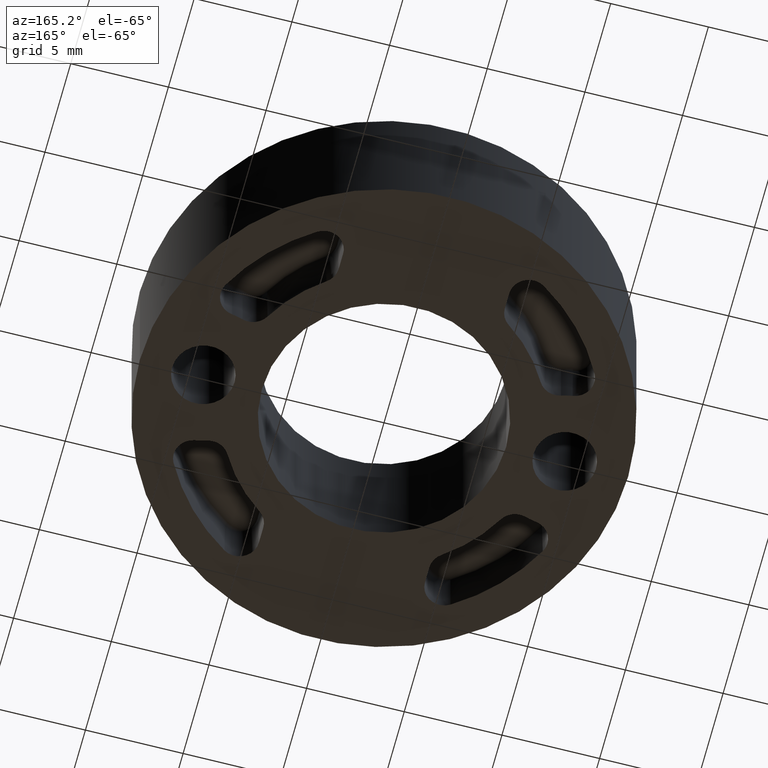
[diagram: clean part render]
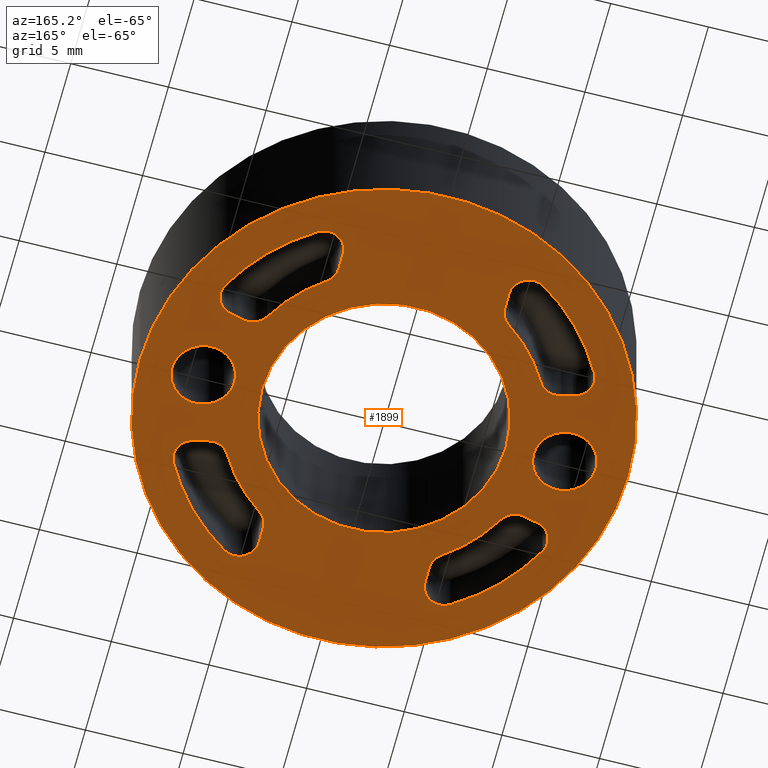
[diagram: same view with one face highlighted and labeled with its STEP entity id]
A machine part, auxiliary view. The second image highlights one B-rep face of the part: STEP entity #1899.
In plain terms, the highlighted planar face has unit normal (0, 0, 1).
Its self-contained STEP definition (entity closure, byte-faithful):
#30 = CARTESIAN_POINT ( 'NONE',  ( 10.85000000000000100, -8.673617379883502000E-016, 7.594265326949536800E-029 ) ) ;
#31 = CARTESIAN_POINT ( 'NONE',  ( 7.649999999999996800, -6.714247213767846500E-016, -7.594265326949537900E-029 ) ) ;
#32 = DIRECTION ( 'NONE',  ( -1.000000000000000000, -4.694454239443882500E-030, 4.746415829343455600E-029 ) ) ;
#33 = DIRECTION ( 'NONE',  ( -4.746415829343455000E-029, 1.143848312570467100E-029, 1.000000000000000000 ) ) ;
#34 = CARTESIAN_POINT ( 'NONE',  ( 9.250000000000000000, -8.673617379884035500E-016, 0.0000000000000000000 ) ) ;
#35 = AXIS2_PLACEMENT_3D ( 'NONE', #34, #33, #32 ) ;
#36 = CIRCLE ( 'NONE', #35, 1.600000000000001600 ) ;
#43 = CARTESIAN_POINT ( 'NONE',  ( -7.649999999999997700, -8.673617379883959500E-016, -7.594265326949536800E-029 ) ) ;
#44 = CARTESIAN_POINT ( 'NONE',  ( -10.85000000000000100, -6.714247213767848500E-016, -7.594265326949536800E-029 ) ) ;
#45 = DIRECTION ( 'NONE',  ( 1.000000000000000000, 4.754639550205983600E-030, -4.746415829343455600E-029 ) ) ;
#46 = DIRECTION ( 'NONE',  ( -4.746415829343455000E-029, 1.143848312570467100E-029, 1.000000000000000000 ) ) ;
#47 = CARTESIAN_POINT ( 'NONE',  ( -9.250000000000000000, -8.673617379884035500E-016, 0.0000000000000000000 ) ) ;
#48 = AXIS2_PLACEMENT_3D ( 'NONE', #47, #46, #45 ) ;
#49 = CIRCLE ( 'NONE', #48, 1.600000000000001600 ) ;
#171 = DIRECTION ( 'NONE',  ( 1.000000000000000000, 0.0000000000000000000, -4.746415829343452800E-029 ) ) ;
#172 = DIRECTION ( 'NONE',  ( -4.746415829343455000E-029, 1.143848312570467100E-029, 1.000000000000000000 ) ) ;
#173 = CARTESIAN_POINT ( 'NONE',  ( 5.250000000000001800, 7.310095758606728100, 0.0000000000000000000 ) ) ;
#174 = AXIS2_PLACEMENT_3D ( 'NONE', #173, #172, #171 ) ;
#175 = CIRCLE ( 'NONE', #174, 1.000000000000000000 ) ;
#176 = CARTESIAN_POINT ( 'NONE',  ( 4.250000000000001800, 7.310095758606728100, 0.0000000000000000000 ) ) ;
#183 = CIRCLE ( 'NONE', #237, 1.000000000000000000 ) ;
#184 = DIRECTION ( 'NONE',  ( 1.000000000000000000, 3.552713678800505700E-015, -4.746415829343459500E-029 ) ) ;
#185 = DIRECTION ( 'NONE',  ( 4.746415829343455000E-029, -1.143848312570467100E-029, -1.000000000000000000 ) ) ;
#186 = CARTESIAN_POINT ( 'NONE',  ( -9.250000000000000000, -8.673617379884035500E-016, 0.0000000000000000000 ) ) ;
#187 = AXIS2_PLACEMENT_3D ( 'NONE', #186, #185, #184 ) ;
#188 = CIRCLE ( 'NONE', #187, 3.600000000000000100 ) ;
#189 = DIRECTION ( 'NONE',  ( 1.000000000000000000, 0.0000000000000000000, -4.746415829343455000E-029 ) ) ;
#190 = DIRECTION ( 'NONE',  ( -4.746415829343455000E-029, 1.143848312570467100E-029, 1.000000000000000000 ) ) ;
#191 = CARTESIAN_POINT ( 'NONE',  ( -7.859594594594603300, -4.384834410627085800, 0.0000000000000000000 ) ) ;
#192 = AXIS2_PLACEMENT_3D ( 'NONE', #191, #190, #189 ) ;
#193 = CIRCLE ( 'NONE', #192, 1.000000000000001800 ) ;
#208 = CARTESIAN_POINT ( 'NONE',  ( -12.50000000000000000, 6.591949208711856900E-014, -5.933019786679327700E-028 ) ) ;
#209 = DIRECTION ( 'NONE',  ( 1.000000000000000000, 4.731287430827687700E-030, -4.746415829343455600E-029 ) ) ;
#210 = DIRECTION ( 'NONE',  ( -4.746415829343455000E-029, 1.143848312570467100E-029, 1.000000000000000000 ) ) ;
#211 = CARTESIAN_POINT ( 'NONE',  ( 0.0000000000000000000, 0.0000000000000000000, 0.0000000000000000000 ) ) ;
#212 = AXIS2_PLACEMENT_3D ( 'NONE', #211, #210, #209 ) ;
#213 = CIRCLE ( 'NONE', #212, 12.50000000000000000 ) ;
#215 = CARTESIAN_POINT ( 'NONE',  ( -4.666666666666665200, 6.497862896539315300, 0.0000000000000000000 ) ) ;
#216 = DIRECTION ( 'NONE',  ( 1.000000000000000000, 4.731287430827687700E-030, -4.746415829343455000E-029 ) ) ;
#217 = DIRECTION ( 'NONE',  ( 4.746415829343455000E-029, -1.143848312570467100E-029, -1.000000000000000000 ) ) ;
#218 = CARTESIAN_POINT ( 'NONE',  ( 0.0000000000000000000, 0.0000000000000000000, 0.0000000000000000000 ) ) ;
#219 = AXIS2_PLACEMENT_3D ( 'NONE', #218, #217, #216 ) ;
#220 = CIRCLE ( 'NONE', #219, 8.000000000000001800 ) ;
#221 = CARTESIAN_POINT ( 'NONE',  ( -6.986306306306307300, 3.897630587224114200, 0.0000000000000000000 ) ) ;
#222 = DIRECTION ( 'NONE',  ( 1.000000000000000000, 0.0000000000000000000, -4.746415829343452800E-029 ) ) ;
#223 = DIRECTION ( 'NONE',  ( -4.746415829343455000E-029, 1.143848312570467100E-029, 1.000000000000000000 ) ) ;
#224 = CARTESIAN_POINT ( 'NONE',  ( -7.859594594594595300, 4.384834410627095600, 0.0000000000000000000 ) ) ;
#225 = AXIS2_PLACEMENT_3D ( 'NONE', #224, #223, #222 ) ;
#226 = CIRCLE ( 'NONE', #225, 1.000000000000000900 ) ;
#227 = CARTESIAN_POINT ( 'NONE',  ( -8.161856639247941900, 3.431609538751669000, -1.301042606982605300E-013 ) ) ;
#228 = DIRECTION ( 'NONE',  ( 1.000000000000000000, 4.734577779951954600E-030, -4.746415829343455000E-029 ) ) ;
#229 = DIRECTION ( 'NONE',  ( 4.746415829343455000E-029, -1.143848312570467100E-029, -1.000000000000000000 ) ) ;
#230 = CARTESIAN_POINT ( 'NONE',  ( -9.250000000000000000, -8.673617379884035500E-016, 0.0000000000000000000 ) ) ;
#231 = AXIS2_PLACEMENT_3D ( 'NONE', #230, #229, #228 ) ;
#232 = CIRCLE ( 'NONE', #231, 3.600000000000000100 ) ;
#233 = CARTESIAN_POINT ( 'NONE',  ( -8.715605170387776800, 3.560115470891914500, -1.301042606982605300E-013 ) ) ;
#234 = DIRECTION ( 'NONE',  ( 1.000000000000000000, 0.0000000000000000000, -4.746415829343455000E-029 ) ) ;
#235 = DIRECTION ( 'NONE',  ( -4.746415829343455000E-029, 1.143848312570467100E-029, 1.000000000000000000 ) ) ;
#236 = CARTESIAN_POINT ( 'NONE',  ( -8.567162162162162500, 4.549036435028519100, 0.0000000000000000000 ) ) ;
#237 = AXIS2_PLACEMENT_3D ( 'NONE', #236, #235, #234 ) ;
#238 = CIRCLE ( 'NONE', #299, 0.9999999999999974500 ) ;
#239 = DIRECTION ( 'NONE',  ( 1.000000000000000000, 4.731287430827687700E-030, -4.746415829343455000E-029 ) ) ;
#240 = DIRECTION ( 'NONE',  ( 4.746415829343455000E-029, 1.143848312570467100E-029, 1.000000000000000000 ) ) ;
#241 = CARTESIAN_POINT ( 'NONE',  ( 0.0000000000000000000, 0.0000000000000000000, 0.0000000000000000000 ) ) ;
#242 = AXIS2_PLACEMENT_3D ( 'NONE', #241, #240, #239 ) ;
#243 = CARTESIAN_POINT ( 'NONE',  ( -5.249999999999998200, 8.156439174051380200, 0.0000000000000000000 ) ) ;
#244 = PLANE ( 'NONE',  #242 ) ;
#260 = FACE_BOUND ( 'NONE', #1670, .T. ) ;
#261 = FACE_BOUND ( 'NONE', #1700, .T. ) ;
#262 = FACE_BOUND ( 'NONE', #1696, .T. ) ;
#263 = FACE_OUTER_BOUND ( 'NONE', #1689, .T. ) ;
#264 = FACE_BOUND ( 'NONE', #1685, .T. ) ;
#265 = FACE_BOUND ( 'NONE', #1681, .T. ) ;
#266 = FACE_BOUND ( 'NONE', #1920, .T. ) ;
#267 = FACE_BOUND ( 'NONE', #1900, .T. ) ;
#268 = DIRECTION ( 'NONE',  ( 1.000000000000000000, 0.0000000000000000000, -4.746415829343452800E-029 ) ) ;
#269 = DIRECTION ( 'NONE',  ( -4.746415829343455000E-029, 1.143848312570467100E-029, 1.000000000000000000 ) ) ;
#270 = CARTESIAN_POINT ( 'NONE',  ( -5.249999999999996400, 7.310095758606726300, 0.0000000000000000000 ) ) ;
#271 = AXIS2_PLACEMENT_3D ( 'NONE', #270, #269, #268 ) ;
#272 = CIRCLE ( 'NONE', #271, 1.000000000000000000 ) ;
#273 = CARTESIAN_POINT ( 'NONE',  ( -4.249999999999996400, 7.310095758606726300, 0.0000000000000000000 ) ) ;
#284 = CARTESIAN_POINT ( 'NONE',  ( -8.161856639247943700, -3.431609538751626300, 1.387778780781445700E-014 ) ) ;
#285 = CARTESIAN_POINT ( 'NONE',  ( 6.250000000000000000, 6.668487105825763000E-014, 2.966509893339651800E-028 ) ) ;
#289 = DIRECTION ( 'NONE',  ( 1.000000000000000000, 4.731287430827688400E-030, -4.746415829343454500E-029 ) ) ;
#290 = DIRECTION ( 'NONE',  ( -4.746415829343455000E-029, 1.143848312570467100E-029, 1.000000000000000000 ) ) ;
#291 = CARTESIAN_POINT ( 'NONE',  ( 0.0000000000000000000, 0.0000000000000000000, 0.0000000000000000000 ) ) ;
#292 = AXIS2_PLACEMENT_3D ( 'NONE', #291, #290, #289 ) ;
#293 = CIRCLE ( 'NONE', #292, 10.69999999999999800 ) ;
#295 = CARTESIAN_POINT ( 'NONE',  ( -5.791237113402054600, 8.997309191994823200, 0.0000000000000000000 ) ) ;
#296 = CARTESIAN_POINT ( 'NONE',  ( -4.249999999999997300, 8.156439174051380200, -1.387778780781445700E-014 ) ) ;
#297 = DIRECTION ( 'NONE',  ( 1.000000000000000000, 0.0000000000000000000, -4.746415829343455000E-029 ) ) ;
#298 = DIRECTION ( 'NONE',  ( -4.746415829343455000E-029, 1.143848312570467100E-029, 1.000000000000000000 ) ) ;
#299 = AXIS2_PLACEMENT_3D ( 'NONE', #243, #298, #297 ) ;
#321 = CARTESIAN_POINT ( 'NONE',  ( 8.161856639247943700, 3.431609538751671200, -1.439820485060749900E-013 ) ) ;
#322 = CARTESIAN_POINT ( 'NONE',  ( 6.986306306306308200, 3.897630587224115900, 1.387778780781445700E-014 ) ) ;
#323 = CARTESIAN_POINT ( 'NONE',  ( 4.666666666666674100, 6.497862896539309900, 0.0000000000000000000 ) ) ;
#324 = DIRECTION ( 'NONE',  ( 1.000000000000000000, -8.881784197001247600E-015, -4.746415829343444900E-029 ) ) ;
#325 = DIRECTION ( 'NONE',  ( 4.746415829343455000E-029, -1.143848312570467100E-029, -1.000000000000000000 ) ) ;
#326 = CARTESIAN_POINT ( 'NONE',  ( 0.0000000000000000000, 0.0000000000000000000, 0.0000000000000000000 ) ) ;
#327 = AXIS2_PLACEMENT_3D ( 'NONE', #326, #325, #324 ) ;
#328 = CIRCLE ( 'NONE', #327, 8.000000000000000000 ) ;
#329 = DIRECTION ( 'NONE',  ( 1.024834271951776500E-015, 1.000000000000000000, 1.138917931912835800E-029 ) ) ;
#330 = VECTOR ( 'NONE', #329, 1000.000000000000000 ) ;
#331 = CARTESIAN_POINT ( 'NONE',  ( -4.250000000000004400, 4.336808689942017700E-015, 0.0000000000000000000 ) ) ;
#332 = LINE ( 'NONE', #331, #330 ) ;
#1184 = VERTEX_POINT ( 'NONE', #9330 ) ;
#1638 = ORIENTED_EDGE ( 'NONE', *, *, #1639, .T. ) ;
#1639 = EDGE_CURVE ( 'NONE', #1184, #1673, #9363, .T. ) ;
#1645 = ORIENTED_EDGE ( 'NONE', *, *, #1646, .T. ) ;
#1646 = EDGE_CURVE ( 'NONE', #1648, #1647, #9398, .T. ) ;
#1647 = VERTEX_POINT ( 'NONE', #9366 ) ;
#1648 = VERTEX_POINT ( 'NONE', #9365 ) ;
#1649 = EDGE_CURVE ( 'NONE', #1775, #1648, #9368, .T. ) ;
#1650 = ORIENTED_EDGE ( 'NONE', *, *, #1651, .T. ) ;
#1651 = EDGE_CURVE ( 'NONE', #1680, #1652, #9360, .T. ) ;
#1652 = VERTEX_POINT ( 'NONE', #9369 ) ;
#1653 = ORIENTED_EDGE ( 'NONE', *, *, #1654, .T. ) ;
#1654 = EDGE_CURVE ( 'NONE', #1652, #1655, #9371, .T. ) ;
#1655 = VERTEX_POINT ( 'NONE', #9372 ) ;
#1656 = ORIENTED_EDGE ( 'NONE', *, *, #1657, .T. ) ;
#1657 = EDGE_CURVE ( 'NONE', #1655, #1658, #9353, .T. ) ;
#1658 = VERTEX_POINT ( 'NONE', #9399 ) ;
#1659 = ORIENTED_EDGE ( 'NONE', *, *, #1660, .T. ) ;
#1660 = EDGE_CURVE ( 'NONE', #1658, #1184, #9443, .T. ) ;
#1662 = ORIENTED_EDGE ( 'NONE', *, *, #1663, .T. ) ;
#1663 = EDGE_CURVE ( 'NONE', #1647, #1664, #9445, .T. ) ;
#1664 = VERTEX_POINT ( 'NONE', #9400 ) ;
#1665 = ORIENTED_EDGE ( 'NONE', *, *, #1666, .T. ) ;
#1666 = EDGE_CURVE ( 'NONE', #1664, #1667, #9408, .T. ) ;
#1667 = VERTEX_POINT ( 'NONE', #9404 ) ;
#1668 = ORIENTED_EDGE ( 'NONE', *, *, #1669, .T. ) ;
#1669 = EDGE_CURVE ( 'NONE', #1667, #1703, #9434, .T. ) ;
#1670 = EDGE_LOOP ( 'NONE', ( #1671, #1675, #1678, #1650, #1653, #1656, #1659, #1638 ) ) ;
#1671 = ORIENTED_EDGE ( 'NONE', *, *, #1672, .T. ) ;
#1672 = EDGE_CURVE ( 'NONE', #1673, #1674, #9425, .T. ) ;
#1673 = VERTEX_POINT ( 'NONE', #9431 ) ;
#1674 = VERTEX_POINT ( 'NONE', #9430 ) ;
#1675 = ORIENTED_EDGE ( 'NONE', *, *, #1676, .T. ) ;
#1676 = EDGE_CURVE ( 'NONE', #1674, #1677, #9414, .T. ) ;
#1677 = VERTEX_POINT ( 'NONE', #9409 ) ;
#1678 = ORIENTED_EDGE ( 'NONE', *, *, #1679, .T. ) ;
#1679 = EDGE_CURVE ( 'NONE', #1677, #1680, #9422, .T. ) ;
#1680 = VERTEX_POINT ( 'NONE', #9423 ) ;
#1681 = EDGE_LOOP ( 'NONE', ( #1682, #1684 ) ) ;
#1682 = ORIENTED_EDGE ( 'NONE', *, *, #1683, .T. ) ;
#1683 = EDGE_CURVE ( 'NONE', #1818, #1817, #9440, .T. ) ;
#1684 = ORIENTED_EDGE ( 'NONE', *, *, #1816, .T. ) ;
#1685 = EDGE_LOOP ( 'NONE', ( #1686, #1688 ) ) ;
#1686 = ORIENTED_EDGE ( 'NONE', *, *, #1687, .T. ) ;
#1687 = EDGE_CURVE ( 'NONE', #1833, #1832, #9498, .T. ) ;
#1688 = ORIENTED_EDGE ( 'NONE', *, *, #1831, .T. ) ;
#1689 = EDGE_LOOP ( 'NONE', ( #1690, #1692 ) ) ;
#1690 = ORIENTED_EDGE ( 'NONE', *, *, #1691, .F. ) ;
#1691 = EDGE_CURVE ( 'NONE', #1896, #1753, #9473, .T. ) ;
#1692 = ORIENTED_EDGE ( 'NONE', *, *, #1895, .F. ) ;
#1696 = EDGE_LOOP ( 'NONE', ( #1697, #1698 ) ) ;
#1697 = ORIENTED_EDGE ( 'NONE', *, *, #1741, .T. ) ;
#1698 = ORIENTED_EDGE ( 'NONE', *, *, #1699, .T. ) ;
#1699 = EDGE_CURVE ( 'NONE', #1910, #1742, #9456, .T. ) ;
#1700 = EDGE_LOOP ( 'NONE', ( #1701, #1874, #1876, #1878, #1879, #1645, #1662, #1665, #1668 ) ) ;
#1701 = ORIENTED_EDGE ( 'NONE', *, *, #1702, .T. ) ;
#1702 = EDGE_CURVE ( 'NONE', #1703, #1704, #9492, .T. ) ;
#1703 = VERTEX_POINT ( 'NONE', #9486 ) ;
#1704 = VERTEX_POINT ( 'NONE', #9485 ) ;
#1741 = EDGE_CURVE ( 'NONE', #1742, #1910, #9576, .T. ) ;
#1742 = VERTEX_POINT ( 'NONE', #9580 ) ;
#1753 = VERTEX_POINT ( 'NONE', #9573 ) ;
#1754 = EDGE_CURVE ( 'NONE', #1924, #1926, #9592, .T. ) ;
#1755 = ORIENTED_EDGE ( 'NONE', *, *, #1756, .T. ) ;
#1756 = EDGE_CURVE ( 'NONE', #1926, #1757, #9634, .T. ) ;
#1757 = VERTEX_POINT ( 'NONE', #9639 ) ;
#1758 = ORIENTED_EDGE ( 'NONE', *, *, #1759, .T. ) ;
#1759 = EDGE_CURVE ( 'NONE', #1757, #1760, #9643, .T. ) ;
#1760 = VERTEX_POINT ( 'NONE', #9635 ) ;
#1761 = ORIENTED_EDGE ( 'NONE', *, *, #1762, .T. ) ;
#1762 = EDGE_CURVE ( 'NONE', #1760, #1763, #9655, .T. ) ;
#1763 = VERTEX_POINT ( 'NONE', #9656 ) ;
#1764 = ORIENTED_EDGE ( 'NONE', *, *, #1765, .T. ) ;
#1765 = EDGE_CURVE ( 'NONE', #1763, #1766, #9660, .T. ) ;
#1766 = VERTEX_POINT ( 'NONE', #9664 ) ;
#1767 = ORIENTED_EDGE ( 'NONE', *, *, #1768, .T. ) ;
#1768 = EDGE_CURVE ( 'NONE', #1766, #1866, #9650, .T. ) ;
#1775 = VERTEX_POINT ( 'NONE', #9666 ) ;
#1777 = EDGE_CURVE ( 'NONE', #1778, #1775, #9667, .T. ) ;
#1778 = VERTEX_POINT ( 'NONE', #9692 ) ;
#1786 = VERTEX_POINT ( 'NONE', #8822 ) ;
#1788 = EDGE_CURVE ( 'NONE', #1789, #1786, #8859, .T. ) ;
#1789 = VERTEX_POINT ( 'NONE', #8845 ) ;
#1816 = EDGE_CURVE ( 'NONE', #1817, #1818, #36, .T. ) ;
#1817 = VERTEX_POINT ( 'NONE', #31 ) ;
#1818 = VERTEX_POINT ( 'NONE', #30 ) ;
#1831 = EDGE_CURVE ( 'NONE', #1832, #1833, #49, .T. ) ;
#1832 = VERTEX_POINT ( 'NONE', #44 ) ;
#1833 = VERTEX_POINT ( 'NONE', #43 ) ;
#1866 = VERTEX_POINT ( 'NONE', #176 ) ;
#1867 = ORIENTED_EDGE ( 'NONE', *, *, #1868, .T. ) ;
#1868 = EDGE_CURVE ( 'NONE', #1866, #1923, #175, .T. ) ;
#1874 = ORIENTED_EDGE ( 'NONE', *, *, #1875, .T. ) ;
#1875 = EDGE_CURVE ( 'NONE', #1704, #1911, #193, .T. ) ;
#1876 = ORIENTED_EDGE ( 'NONE', *, *, #1877, .T. ) ;
#1877 = EDGE_CURVE ( 'NONE', #1911, #1778, #188, .T. ) ;
#1878 = ORIENTED_EDGE ( 'NONE', *, *, #1777, .T. ) ;
#1879 = ORIENTED_EDGE ( 'NONE', *, *, #1649, .T. ) ;
#1880 = ORIENTED_EDGE ( 'NONE', *, *, #1881, .T. ) ;
#1881 = EDGE_CURVE ( 'NONE', #1786, #1882, #183, .T. ) ;
#1882 = VERTEX_POINT ( 'NONE', #233 ) ;
#1883 = ORIENTED_EDGE ( 'NONE', *, *, #1884, .T. ) ;
#1884 = EDGE_CURVE ( 'NONE', #1882, #1885, #232, .T. ) ;
#1885 = VERTEX_POINT ( 'NONE', #227 ) ;
#1886 = ORIENTED_EDGE ( 'NONE', *, *, #1887, .T. ) ;
#1887 = EDGE_CURVE ( 'NONE', #1885, #1888, #226, .T. ) ;
#1888 = VERTEX_POINT ( 'NONE', #221 ) ;
#1889 = ORIENTED_EDGE ( 'NONE', *, *, #1890, .T. ) ;
#1890 = EDGE_CURVE ( 'NONE', #1888, #1891, #220, .T. ) ;
#1891 = VERTEX_POINT ( 'NONE', #215 ) ;
#1892 = ORIENTED_EDGE ( 'NONE', *, *, #1916, .T. ) ;
#1895 = EDGE_CURVE ( 'NONE', #1753, #1896, #213, .T. ) ;
#1896 = VERTEX_POINT ( 'NONE', #208 ) ;
#1899 = ADVANCED_FACE ( 'NONE', ( #267, #266, #265, #264, #263, #262, #261, #260 ), #244, .F. ) ;
#1900 = EDGE_LOOP ( 'NONE', ( #1901, #1905, #1907, #1880, #1883, #1886, #1889, #1892, #1918 ) ) ;
#1901 = ORIENTED_EDGE ( 'NONE', *, *, #1902, .T. ) ;
#1902 = EDGE_CURVE ( 'NONE', #1903, #1904, #238, .T. ) ;
#1903 = VERTEX_POINT ( 'NONE', #296 ) ;
#1904 = VERTEX_POINT ( 'NONE', #295 ) ;
#1905 = ORIENTED_EDGE ( 'NONE', *, *, #1906, .T. ) ;
#1906 = EDGE_CURVE ( 'NONE', #1904, #1789, #293, .T. ) ;
#1907 = ORIENTED_EDGE ( 'NONE', *, *, #1788, .T. ) ;
#1910 = VERTEX_POINT ( 'NONE', #285 ) ;
#1911 = VERTEX_POINT ( 'NONE', #284 ) ;
#1916 = EDGE_CURVE ( 'NONE', #1891, #1917, #272, .T. ) ;
#1917 = VERTEX_POINT ( 'NONE', #273 ) ;
#1918 = ORIENTED_EDGE ( 'NONE', *, *, #1919, .T. ) ;
#1919 = EDGE_CURVE ( 'NONE', #1917, #1903, #332, .T. ) ;
#1920 = EDGE_LOOP ( 'NONE', ( #1921, #1925, #1755, #1758, #1761, #1764, #1767, #1867 ) ) ;
#1921 = ORIENTED_EDGE ( 'NONE', *, *, #1922, .T. ) ;
#1922 = EDGE_CURVE ( 'NONE', #1923, #1924, #328, .T. ) ;
#1923 = VERTEX_POINT ( 'NONE', #323 ) ;
#1924 = VERTEX_POINT ( 'NONE', #322 ) ;
#1925 = ORIENTED_EDGE ( 'NONE', *, *, #1754, .T. ) ;
#1926 = VERTEX_POINT ( 'NONE', #321 ) ;
#8822 = CARTESIAN_POINT ( 'NONE',  ( -9.567162162162160800, 4.549036435028519100, 0.0000000000000000000 ) ) ;
#8843 = AXIS2_PLACEMENT_3D ( 'NONE', #8860, #8846, #8844 ) ;
#8844 = DIRECTION ( 'NONE',  ( 1.000000000000000000, 0.0000000000000000000, -4.746415829343455000E-029 ) ) ;
#8845 = CARTESIAN_POINT ( 'NONE',  ( -9.450374756199494200, 5.018009263381973300, 0.0000000000000000000 ) ) ;
#8846 = DIRECTION ( 'NONE',  ( -4.746415829343455000E-029, 1.143848312570467100E-029, 1.000000000000000000 ) ) ;
#8859 = CIRCLE ( 'NONE', #8843, 1.000000000000000000 ) ;
#8860 = CARTESIAN_POINT ( 'NONE',  ( -8.567162162162162500, 4.549036435028519100, 0.0000000000000000000 ) ) ;
#9260 = DIRECTION ( 'NONE',  ( 1.000000000000000000, 4.731287430827688400E-030, -4.746415829343454500E-029 ) ) ;
#9305 = CARTESIAN_POINT ( 'NONE',  ( 9.250000000000000000, -8.673617379884035500E-016, 0.0000000000000000000 ) ) ;
#9330 = CARTESIAN_POINT ( 'NONE',  ( 8.715605170387776800, -3.560115470891870500, 0.0000000000000000000 ) ) ;
#9350 = DIRECTION ( 'NONE',  ( -4.746415829343455000E-029, 1.143848312570467100E-029, 1.000000000000000000 ) ) ;
#9351 = CARTESIAN_POINT ( 'NONE',  ( 0.0000000000000000000, 0.0000000000000000000, 0.0000000000000000000 ) ) ;
#9352 = AXIS2_PLACEMENT_3D ( 'NONE', #9351, #9350, #9260 ) ;
#9353 = CIRCLE ( 'NONE', #9352, 10.69999999999999900 ) ;
#9354 = DIRECTION ( 'NONE',  ( -4.746415829343455000E-029, 1.143848312570467100E-029, 1.000000000000000000 ) ) ;
#9355 = DIRECTION ( 'NONE',  ( 1.000000000000000000, 0.0000000000000000000, -4.746415829343453900E-029 ) ) ;
#9356 = DIRECTION ( 'NONE',  ( -4.746415829343455000E-029, 1.143848312570467100E-029, 1.000000000000000000 ) ) ;
#9357 = CARTESIAN_POINT ( 'NONE',  ( -8.567162162162164300, -4.549036435028510200, 0.0000000000000000000 ) ) ;
#9358 = VECTOR ( 'NONE', #9370, 1000.000000000000000 ) ;
#9359 = CARTESIAN_POINT ( 'NONE',  ( 4.250000000000011500, -4.336808689942017700E-015, 0.0000000000000000000 ) ) ;
#9360 = LINE ( 'NONE', #9359, #9358 ) ;
#9361 = CARTESIAN_POINT ( 'NONE',  ( 9.250000000000000000, 8.673617379884035500E-016, 0.0000000000000000000 ) ) ;
#9362 = AXIS2_PLACEMENT_3D ( 'NONE', #9361, #9378, #9377 ) ;
#9363 = CIRCLE ( 'NONE', #9362, 3.600000000000001000 ) ;
#9365 = CARTESIAN_POINT ( 'NONE',  ( -9.450374756199496000, -5.018009263381970600, 0.0000000000000000000 ) ) ;
#9366 = CARTESIAN_POINT ( 'NONE',  ( -5.791237113402050200, -8.997309191994824900, 0.0000000000000000000 ) ) ;
#9367 = AXIS2_PLACEMENT_3D ( 'NONE', #9357, #9356, #9355 ) ;
#9368 = CIRCLE ( 'NONE', #9367, 1.000000000000000000 ) ;
#9369 = CARTESIAN_POINT ( 'NONE',  ( 4.250000000000002700, -8.156439174051385500, 1.387778780781445700E-014 ) ) ;
#9370 = DIRECTION ( 'NONE',  ( -1.024834271951773400E-015, -1.000000000000000000, -1.138917931912835800E-029 ) ) ;
#9371 = CIRCLE ( 'NONE', #9376, 0.9999999999999974500 ) ;
#9372 = CARTESIAN_POINT ( 'NONE',  ( 5.791237113402066200, -8.997309191994824900, 0.0000000000000000000 ) ) ;
#9373 = DIRECTION ( 'NONE',  ( 1.000000000000000000, 0.0000000000000000000, -4.746415829343455000E-029 ) ) ;
#9374 = DIRECTION ( 'NONE',  ( -4.746415829343455000E-029, 1.143848312570467100E-029, 1.000000000000000000 ) ) ;
#9375 = CARTESIAN_POINT ( 'NONE',  ( 5.250000000000003600, -8.156439174051385500, 0.0000000000000000000 ) ) ;
#9376 = AXIS2_PLACEMENT_3D ( 'NONE', #9375, #9374, #9373 ) ;
#9377 = DIRECTION ( 'NONE',  ( 1.000000000000000000, 4.707828752946575300E-030, -4.746415829343455000E-029 ) ) ;
#9378 = DIRECTION ( 'NONE',  ( 4.746415829343455000E-029, -1.143848312570467100E-029, -1.000000000000000000 ) ) ;
#9380 = DIRECTION ( 'NONE',  ( 1.000000000000000000, 4.731287430827687700E-030, -4.746415829343454500E-029 ) ) ;
#9381 = DIRECTION ( 'NONE',  ( -4.746415829343455000E-029, 1.143848312570467100E-029, 1.000000000000000000 ) ) ;
#9382 = CARTESIAN_POINT ( 'NONE',  ( 0.0000000000000000000, 0.0000000000000000000, 0.0000000000000000000 ) ) ;
#9383 = AXIS2_PLACEMENT_3D ( 'NONE', #9382, #9381, #9380 ) ;
#9398 = CIRCLE ( 'NONE', #9383, 10.70000000000000100 ) ;
#9399 = CARTESIAN_POINT ( 'NONE',  ( 9.450374756199497700, -5.018009263381960000, 0.0000000000000000000 ) ) ;
#9400 = CARTESIAN_POINT ( 'NONE',  ( -4.249999999999997300, -8.156439174051385500, 0.0000000000000000000 ) ) ;
#9401 = DIRECTION ( 'NONE',  ( 1.000000000000000000, 0.0000000000000000000, -4.776306262080357200E-029 ) ) ;
#9402 = DIRECTION ( 'NONE',  ( -4.746415829343455000E-029, 1.143848312570467100E-029, 1.000000000000000000 ) ) ;
#9403 = CARTESIAN_POINT ( 'NONE',  ( -5.249999999999995600, -8.156439174051385500, 1.387778780781445700E-014 ) ) ;
#9404 = CARTESIAN_POINT ( 'NONE',  ( -4.249999999999998200, -7.310095758606715700, 0.0000000000000000000 ) ) ;
#9405 = DIRECTION ( 'NONE',  ( -1.024834271951761900E-015, 1.000000000000000000, 1.188221738489149000E-029 ) ) ;
#9406 = VECTOR ( 'NONE', #9405, 1000.000000000000000 ) ;
#9407 = CARTESIAN_POINT ( 'NONE',  ( -4.250000000000002700, -4.336808689942017700E-015, 0.0000000000000000000 ) ) ;
#9408 = LINE ( 'NONE', #9407, #9406 ) ;
#9409 = CARTESIAN_POINT ( 'NONE',  ( 4.666666666666668700, -6.497862896539301900, 0.0000000000000000000 ) ) ;
#9410 = DIRECTION ( 'NONE',  ( 1.000000000000000000, 4.731287430827687700E-030, -4.746415829343455000E-029 ) ) ;
#9411 = DIRECTION ( 'NONE',  ( 4.746415829343455000E-029, -1.143848312570467100E-029, -1.000000000000000000 ) ) ;
#9412 = CARTESIAN_POINT ( 'NONE',  ( 0.0000000000000000000, 0.0000000000000000000, 0.0000000000000000000 ) ) ;
#9413 = AXIS2_PLACEMENT_3D ( 'NONE', #9412, #9411, #9410 ) ;
#9414 = CIRCLE ( 'NONE', #9413, 8.000000000000000000 ) ;
#9419 = DIRECTION ( 'NONE',  ( -4.746415829343455000E-029, 1.143848312570467100E-029, 1.000000000000000000 ) ) ;
#9420 = CARTESIAN_POINT ( 'NONE',  ( 5.250000000000000000, -7.310095758606715700, 0.0000000000000000000 ) ) ;
#9421 = AXIS2_PLACEMENT_3D ( 'NONE', #9420, #9419, #9424 ) ;
#9422 = CIRCLE ( 'NONE', #9421, 1.000000000000000000 ) ;
#9423 = CARTESIAN_POINT ( 'NONE',  ( 4.250000000000000000, -7.310095758606715700, 0.0000000000000000000 ) ) ;
#9424 = DIRECTION ( 'NONE',  ( 1.000000000000000000, 0.0000000000000000000, -4.746415829343452800E-029 ) ) ;
#9425 = CIRCLE ( 'NONE', #9429, 1.000000000000000900 ) ;
#9426 = DIRECTION ( 'NONE',  ( 1.000000000000000000, 0.0000000000000000000, -4.746415829343452800E-029 ) ) ;
#9427 = DIRECTION ( 'NONE',  ( 1.000000000000000000, 0.0000000000000000000, -4.746415829343456700E-029 ) ) ;
#9428 = DIRECTION ( 'NONE',  ( -4.746415829343455000E-029, 1.143848312570467100E-029, 1.000000000000000000 ) ) ;
#9429 = AXIS2_PLACEMENT_3D ( 'NONE', #9438, #9428, #9427 ) ;
#9430 = CARTESIAN_POINT ( 'NONE',  ( 6.986306306306310900, -3.897630587224071500, -1.335737076502141500E-013 ) ) ;
#9431 = CARTESIAN_POINT ( 'NONE',  ( 8.161856639247941900, -3.431609538751626300, 0.0000000000000000000 ) ) ;
#9432 = DIRECTION ( 'NONE',  ( 1.000000000000000000, 0.0000000000000000000, -4.746415829343458400E-029 ) ) ;
#9433 = DIRECTION ( 'NONE',  ( -4.746415829343455000E-029, 1.143848312570467100E-029, 1.000000000000000000 ) ) ;
#9434 = CIRCLE ( 'NONE', #9437, 1.000000000000000000 ) ;
#9435 = DIRECTION ( 'NONE',  ( -4.746415829343455000E-029, 1.143848312570467100E-029, 1.000000000000000000 ) ) ;
#9436 = CARTESIAN_POINT ( 'NONE',  ( -5.249999999999998200, -7.310095758606715700, 0.0000000000000000000 ) ) ;
#9437 = AXIS2_PLACEMENT_3D ( 'NONE', #9436, #9435, #9426 ) ;
#9438 = CARTESIAN_POINT ( 'NONE',  ( 7.859594594594590000, -4.384834410627082200, 0.0000000000000000000 ) ) ;
#9439 = AXIS2_PLACEMENT_3D ( 'NONE', #9305, #9354, #9499 ) ;
#9440 = CIRCLE ( 'NONE', #9439, 1.600000000000001600 ) ;
#9441 = CARTESIAN_POINT ( 'NONE',  ( 8.567162162162164300, -4.549036435028506600, 0.0000000000000000000 ) ) ;
#9442 = AXIS2_PLACEMENT_3D ( 'NONE', #9441, #9433, #9432 ) ;
#9443 = CIRCLE ( 'NONE', #9442, 0.9999999999999991100 ) ;
#9444 = AXIS2_PLACEMENT_3D ( 'NONE', #9403, #9402, #9401 ) ;
#9445 = CIRCLE ( 'NONE', #9444, 0.9999999999999974500 ) ;
#9456 = CIRCLE ( 'NONE', #9497, 6.250000000000000000 ) ;
#9459 = CARTESIAN_POINT ( 'NONE',  ( 0.0000000000000000000, 0.0000000000000000000, 0.0000000000000000000 ) ) ;
#9460 = DIRECTION ( 'NONE',  ( 1.000000000000000000, 4.731287430827687700E-030, -4.746415829343455600E-029 ) ) ;
#9461 = DIRECTION ( 'NONE',  ( -4.746415829343455000E-029, 1.143848312570467100E-029, 1.000000000000000000 ) ) ;
#9462 = AXIS2_PLACEMENT_3D ( 'NONE', #9494, #9461, #9460 ) ;
#9473 = CIRCLE ( 'NONE', #9462, 12.50000000000000000 ) ;
#9482 = DIRECTION ( 'NONE',  ( 1.000000000000000000, 4.754639550205983600E-030, -4.746415829343455600E-029 ) ) ;
#9483 = DIRECTION ( 'NONE',  ( -4.746415829343455000E-029, 1.143848312570467100E-029, 1.000000000000000000 ) ) ;
#9484 = CARTESIAN_POINT ( 'NONE',  ( -9.250000000000000000, -8.673617379884035500E-016, 0.0000000000000000000 ) ) ;
#9485 = CARTESIAN_POINT ( 'NONE',  ( -6.986306306306303800, -3.897630587224075100, -1.474514954580286000E-013 ) ) ;
#9486 = CARTESIAN_POINT ( 'NONE',  ( -4.666666666666667900, -6.497862896539298400, 0.0000000000000000000 ) ) ;
#9487 = DIRECTION ( 'NONE',  ( 1.000000000000000000, 4.731287430827687700E-030, -4.746415829343455000E-029 ) ) ;
#9488 = DIRECTION ( 'NONE',  ( 4.746415829343455000E-029, -1.143848312570467100E-029, -1.000000000000000000 ) ) ;
#9490 = CARTESIAN_POINT ( 'NONE',  ( 0.0000000000000000000, 0.0000000000000000000, 0.0000000000000000000 ) ) ;
#9491 = AXIS2_PLACEMENT_3D ( 'NONE', #9490, #9488, #9487 ) ;
#9492 = CIRCLE ( 'NONE', #9491, 8.000000000000000000 ) ;
#9493 = AXIS2_PLACEMENT_3D ( 'NONE', #9484, #9483, #9482 ) ;
#9494 = CARTESIAN_POINT ( 'NONE',  ( 0.0000000000000000000, 0.0000000000000000000, 0.0000000000000000000 ) ) ;
#9495 = DIRECTION ( 'NONE',  ( 1.000000000000000000, 4.731287430827687700E-030, -4.746415829343455600E-029 ) ) ;
#9496 = DIRECTION ( 'NONE',  ( -4.746415829343455000E-029, 1.143848312570467100E-029, 1.000000000000000000 ) ) ;
#9497 = AXIS2_PLACEMENT_3D ( 'NONE', #9459, #9496, #9495 ) ;
#9498 = CIRCLE ( 'NONE', #9493, 1.600000000000001600 ) ;
#9499 = DIRECTION ( 'NONE',  ( -1.000000000000000000, -4.694454239443882500E-030, 4.746415829343455600E-029 ) ) ;
#9572 = CARTESIAN_POINT ( 'NONE',  ( 7.859594594594595300, 4.384834410627097300, 0.0000000000000000000 ) ) ;
#9573 = CARTESIAN_POINT ( 'NONE',  ( 12.50000000000000000, 6.745025002939665400E-014, 5.933019786679312500E-028 ) ) ;
#9576 = CIRCLE ( 'NONE', #9579, 6.250000000000000000 ) ;
#9577 = DIRECTION ( 'NONE',  ( -4.746415829343455000E-029, 1.143848312570467100E-029, 1.000000000000000000 ) ) ;
#9578 = CARTESIAN_POINT ( 'NONE',  ( 0.0000000000000000000, 0.0000000000000000000, 0.0000000000000000000 ) ) ;
#9579 = AXIS2_PLACEMENT_3D ( 'NONE', #9578, #9577, #9581 ) ;
#9580 = CARTESIAN_POINT ( 'NONE',  ( -6.250000000000000000, 6.591949208711859400E-014, -2.966509893339667000E-028 ) ) ;
#9581 = DIRECTION ( 'NONE',  ( 1.000000000000000000, 4.731287430827687700E-030, -4.746415829343455600E-029 ) ) ;
#9589 = DIRECTION ( 'NONE',  ( 1.000000000000000000, 0.0000000000000000000, -4.746415829343454500E-029 ) ) ;
#9590 = DIRECTION ( 'NONE',  ( -4.746415829343455000E-029, 1.143848312570467100E-029, 1.000000000000000000 ) ) ;
#9591 = AXIS2_PLACEMENT_3D ( 'NONE', #9572, #9590, #9589 ) ;
#9592 = CIRCLE ( 'NONE', #9591, 1.000000000000000900 ) ;
#9632 = CARTESIAN_POINT ( 'NONE',  ( 9.250000000000000000, 8.673617379884035500E-016, 0.0000000000000000000 ) ) ;
#9633 = AXIS2_PLACEMENT_3D ( 'NONE', #9632, #9638, #9637 ) ;
#9634 = CIRCLE ( 'NONE', #9633, 3.600000000000001000 ) ;
#9635 = CARTESIAN_POINT ( 'NONE',  ( 9.450374756199496000, 5.018009263381979500, 0.0000000000000000000 ) ) ;
#9636 = DIRECTION ( 'NONE',  ( 1.000000000000000000, 0.0000000000000000000, -4.746415829343458400E-029 ) ) ;
#9637 = DIRECTION ( 'NONE',  ( 1.000000000000000000, -6.217248937900869500E-015, -4.746415829343446600E-029 ) ) ;
#9638 = DIRECTION ( 'NONE',  ( 4.746415829343455000E-029, -1.143848312570467100E-029, -1.000000000000000000 ) ) ;
#9639 = CARTESIAN_POINT ( 'NONE',  ( 8.715605170387778600, 3.560115470891917200, -1.439820485060749900E-013 ) ) ;
#9640 = DIRECTION ( 'NONE',  ( -4.746415829343455000E-029, 1.143848312570467100E-029, 1.000000000000000000 ) ) ;
#9641 = CARTESIAN_POINT ( 'NONE',  ( 8.567162162162162500, 4.549036435028520800, 0.0000000000000000000 ) ) ;
#9642 = AXIS2_PLACEMENT_3D ( 'NONE', #9641, #9640, #9636 ) ;
#9643 = CIRCLE ( 'NONE', #9642, 0.9999999999999991100 ) ;
#9647 = DIRECTION ( 'NONE',  ( 1.024834271951765100E-015, -1.000000000000000000, -1.188221738489149000E-029 ) ) ;
#9648 = VECTOR ( 'NONE', #9647, 1000.000000000000000 ) ;
#9649 = CARTESIAN_POINT ( 'NONE',  ( 4.250000000000009800, 4.336808689942017700E-015, 0.0000000000000000000 ) ) ;
#9650 = LINE ( 'NONE', #9649, #9648 ) ;
#9654 = AXIS2_PLACEMENT_3D ( 'NONE', #9659, #9658, #9657 ) ;
#9655 = CIRCLE ( 'NONE', #9654, 10.69999999999999800 ) ;
#9656 = CARTESIAN_POINT ( 'NONE',  ( 5.791237113402056400, 8.997309191994819600, 0.0000000000000000000 ) ) ;
#9657 = DIRECTION ( 'NONE',  ( 1.000000000000000000, 4.731287430827688400E-030, -4.746415829343454500E-029 ) ) ;
#9658 = DIRECTION ( 'NONE',  ( -4.746415829343455000E-029, 1.143848312570467100E-029, 1.000000000000000000 ) ) ;
#9659 = CARTESIAN_POINT ( 'NONE',  ( 0.0000000000000000000, 0.0000000000000000000, 0.0000000000000000000 ) ) ;
#9660 = CIRCLE ( 'NONE', #9663, 0.9999999999999974500 ) ;
#9661 = DIRECTION ( 'NONE',  ( -4.746415829343455000E-029, 1.143848312570467100E-029, 1.000000000000000000 ) ) ;
#9662 = CARTESIAN_POINT ( 'NONE',  ( 5.250000000000000000, 8.156439174051382000, -1.387778780781445700E-014 ) ) ;
#9663 = AXIS2_PLACEMENT_3D ( 'NONE', #9662, #9661, #9665 ) ;
#9664 = CARTESIAN_POINT ( 'NONE',  ( 4.250000000000002700, 8.156439174051382000, 0.0000000000000000000 ) ) ;
#9665 = DIRECTION ( 'NONE',  ( 1.000000000000000000, 0.0000000000000000000, -4.622231866529377800E-029 ) ) ;
#9666 = CARTESIAN_POINT ( 'NONE',  ( -9.567162162162162500, -4.549036435028513700, 0.0000000000000000000 ) ) ;
#9667 = CIRCLE ( 'NONE', #9683, 1.000000000000000000 ) ;
#9683 = AXIS2_PLACEMENT_3D ( 'NONE', #9691, #9690, #9689 ) ;
#9689 = DIRECTION ( 'NONE',  ( 1.000000000000000000, 0.0000000000000000000, -4.746415829343453900E-029 ) ) ;
#9690 = DIRECTION ( 'NONE',  ( -4.746415829343455000E-029, 1.143848312570467100E-029, 1.000000000000000000 ) ) ;
#9691 = CARTESIAN_POINT ( 'NONE',  ( -8.567162162162164300, -4.549036435028510200, 0.0000000000000000000 ) ) ;
#9692 = CARTESIAN_POINT ( 'NONE',  ( -8.715605170387778600, -3.560115470891874100, 1.387778780781445700E-014 ) ) ;